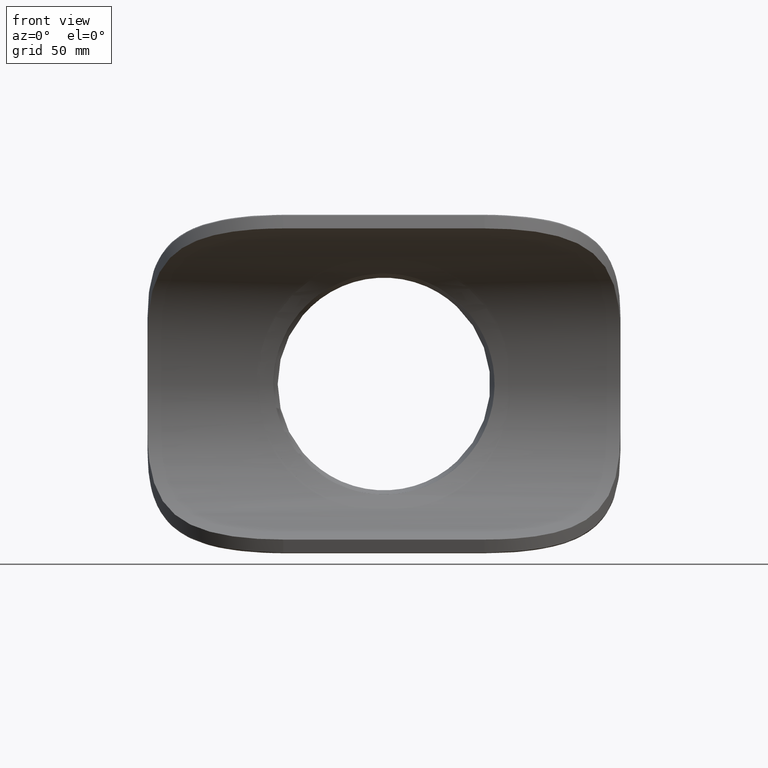
[diagram: clean part render]
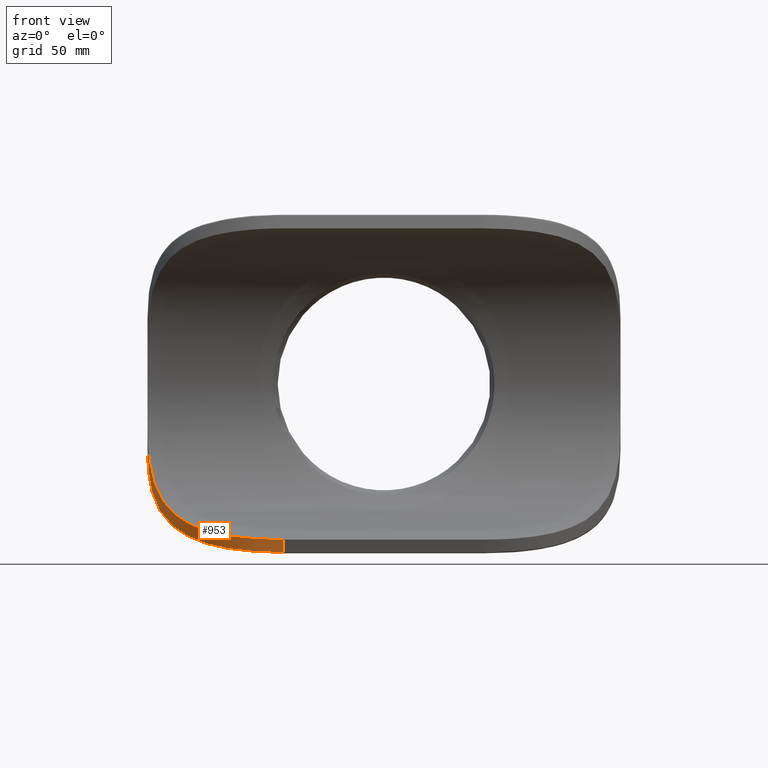
[diagram: same view with one face highlighted and labeled with its STEP entity id]
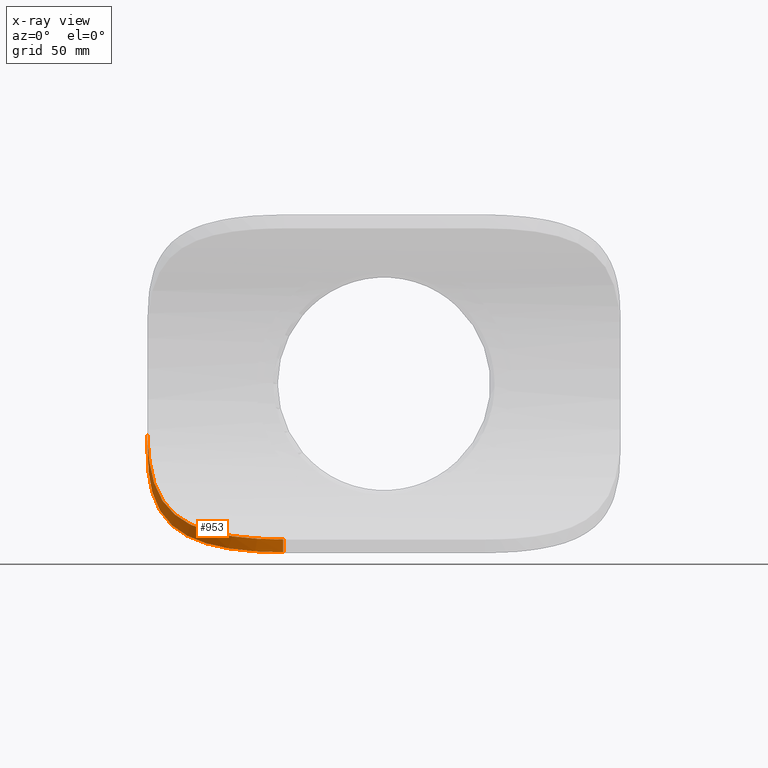
[diagram: x-ray of the same camera — body ghosted, the highlighted face saturated]
A machine part, front view. The second image highlights one B-rep face of the part: STEP entity #953.
The next image is the same camera in x-ray: the body ghosted, the highlighted face saturated — about 0% of this face is hidden behind the body in this view.
In plain terms, the highlighted cylindrical surface (partial cylindrical patch) has radius 83.2 mm, axis along (0, -0.2994, 0.9541).
Its self-contained STEP definition (entity closure, byte-faithful):
#21=LINE('',#2171,#49);
#41=LINE('',#2681,#69);
#49=VECTOR('',#1245,8.16480018934075);
#69=VECTOR('',#1333,13.6460669649991);
#103=B_SPLINE_CURVE_WITH_KNOTS('',3,(#2054,#2055,#2056,#2057,#2058,#2059,
#2060,#2061,#2062,#2063),.UNSPECIFIED.,.F.,.F.,(4,1,1,1,1,1,1,4),(-14.0615586488499,
-12.0527645561571,-10.0439704634642,-8.0351763707714,-6.02638227807855,
-4.0175881853857,-2.00879409269285,0.),.UNSPECIFIED.);
#122=B_SPLINE_CURVE_WITH_KNOTS('',3,(#2684,#2685,#2686,#2687,#2688,#2689,
#2690,#2691,#2692,#2693,#2694,#2695,#2696,#2697,#2698,#2699,#2700,#2701,
#2702,#2703,#2704,#2705),.UNSPECIFIED.,.F.,.F.,(4,2,2,2,2,2,2,2,2,2,4),
(31.2587043916038,33.0565753101361,34.8544462286683,36.6523171472006,38.4501880657329,
39.3837526975909,40.317317329449,41.250881961307,42.184446593165,44.3889057796677,
45.2974154332187),.UNSPECIFIED.);
#194=CYLINDRICAL_SURFACE('',#1074,83.2);
#260=FACE_OUTER_BOUND('',#361,.T.);
#361=EDGE_LOOP('',(#853,#854,#855,#856));
#468=VERTEX_POINT('',#1987);
#470=VERTEX_POINT('',#2052);
#476=VERTEX_POINT('',#2169);
#506=VERTEX_POINT('',#2680);
#562=EDGE_CURVE('',#470,#468,#103,.T.);
#574=EDGE_CURVE('',#470,#476,#21,.T.);
#624=EDGE_CURVE('',#506,#468,#41,.T.);
#626=EDGE_CURVE('',#476,#506,#122,.T.);
#853=ORIENTED_EDGE('',*,*,#562,.F.);
#854=ORIENTED_EDGE('',*,*,#574,.T.);
#855=ORIENTED_EDGE('',*,*,#626,.T.);
#856=ORIENTED_EDGE('',*,*,#624,.T.);
#953=ADVANCED_FACE('',(#260),#194,.T.);
#1074=AXIS2_PLACEMENT_3D('',#2683,#1336,#1337);
#1245=DIRECTION('',(0.,-0.299397593983132,0.954128440366973));
#1333=DIRECTION('',(0.,0.299397593983132,-0.954128440366973));
#1336=DIRECTION('center_axis',(0.,-0.299397593983132,0.954128440366973));
#1337=DIRECTION('ref_axis',(-0.707106781186547,-0.674670690306431,-0.211706068976409));
#1987=CARTESIAN_POINT('',(-145.,-40.3210652529039,-41.0429414624059));
#2052=CARTESIAN_POINT('',(-61.8,-108.015719069645,-103.203112107261));
#2054=CARTESIAN_POINT('Ctrl Pts',(-61.8,-108.015719069645,-103.203112107261));
#2055=CARTESIAN_POINT('Ctrl Pts',(-68.5636164737133,-108.015719069645,-103.203112107261));
#2056=CARTESIAN_POINT('Ctrl Pts',(-82.090348813028,-106.432391725137,-102.711916334587));
#2057=CARTESIAN_POINT('Ctrl Pts',(-101.180610434333,-99.5475900297808,-100.232284409762));
#2058=CARTESIAN_POINT('Ctrl Pts',(-117.904006419459,-88.8511416347174,-95.2812520397311));
#2059=CARTESIAN_POINT('Ctrl Pts',(-131.120767316956,-75.5894692866551,-86.9680644553398));
#2060=CARTESIAN_POINT('Ctrl Pts',(-139.926366832173,-61.6714061060131,-74.790181883917));
#2061=CARTESIAN_POINT('Ctrl Pts',(-144.329789108167,-49.2373164533636,-59.2060064374844));
#2062=CARTESIAN_POINT('Ctrl Pts',(-145.,-42.9030074515192,-47.2511207499447));
#2063=CARTESIAN_POINT('Ctrl Pts',(-145.,-40.3210652529039,-41.0429414624059));
#2169=CARTESIAN_POINT('',(-61.8,-110.460240601687,-95.4128440366972));
#2171=CARTESIAN_POINT('',(-61.8,-121.98822628771,-58.6751439875854));
#2680=CARTESIAN_POINT('',(-145.,-44.4066648695573,-28.0228408719479));
#2681=CARTESIAN_POINT('',(-145.,-42.6047400491778,-33.7652641681888));
#2683=CARTESIAN_POINT('Origin',(-61.8,-42.6047400491778,-33.7652641681888));
#2684=CARTESIAN_POINT('Ctrl Pts',(-61.8,-110.460240601687,-95.4128440366973));
#2685=CARTESIAN_POINT('Ctrl Pts',(-67.7929030617742,-110.460240601687,-95.4128440366973));
#2686=CARTESIAN_POINT('Ctrl Pts',(-73.9557241352187,-109.830274548936,-95.2226324909877));
#2687=CARTESIAN_POINT('Ctrl Pts',(-86.095481178902,-107.246285865685,-94.354062404267));
#2688=CARTESIAN_POINT('Ctrl Pts',(-92.0725525536097,-105.293365990764,-93.6743165936874));
#2689=CARTESIAN_POINT('Ctrl Pts',(-103.366241503531,-100.268253058272,-91.6340373245549));
#2690=CARTESIAN_POINT('Ctrl Pts',(-108.694781592578,-97.1915115170743,-90.2668704033396));
#2691=CARTESIAN_POINT('Ctrl Pts',(-118.324631714094,-90.3212201607682,-86.6440833812969));
#2692=CARTESIAN_POINT('Ctrl Pts',(-122.625022410693,-86.5295520892668,-84.3824537998285));
#2693=CARTESIAN_POINT('Ctrl Pts',(-128.205328967537,-80.6555582703397,-80.2287219474217));
#2694=CARTESIAN_POINT('Ctrl Pts',(-130.043660412214,-78.5213711855581,-78.6071452837614));
#2695=CARTESIAN_POINT('Ctrl Pts',(-133.424161919575,-74.1644673303502,-74.9726763961327));
#2696=CARTESIAN_POINT('Ctrl Pts',(-134.966454265175,-71.9424292881772,-72.9590843354368));
#2697=CARTESIAN_POINT('Ctrl Pts',(-137.67596428041,-67.5864787743356,-68.6123767108861));
#2698=CARTESIAN_POINT('Ctrl Pts',(-138.845136797913,-65.4509506304562,-66.2767002070649));
#2699=CARTESIAN_POINT('Ctrl Pts',(-140.806927009369,-61.4207553862469,-61.4185632579193));
#2700=CARTESIAN_POINT('Ctrl Pts',(-141.600454550631,-59.5264757124756,-58.8961488734371));
#2701=CARTESIAN_POINT('Ctrl Pts',(-143.727750831431,-53.7523594424006,-50.4375761348875));
#2702=CARTESIAN_POINT('Ctrl Pts',(-144.498559634842,-50.2163591565464,-43.8581455751639));
#2703=CARTESIAN_POINT('Ctrl Pts',(-144.945603200263,-46.2991919085445,-33.9802238285457));
#2704=CARTESIAN_POINT('Ctrl Pts',(-145.,-45.2837526658658,-31.0273393506922));
#2705=CARTESIAN_POINT('Ctrl Pts',(-145.,-44.4066648695573,-28.0228408719479));